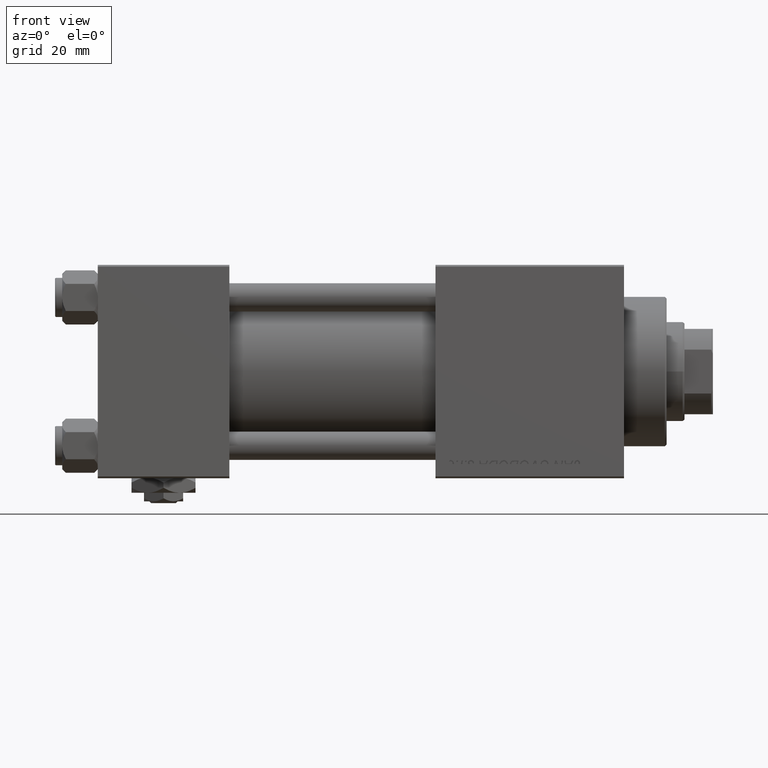
[diagram: clean part render]
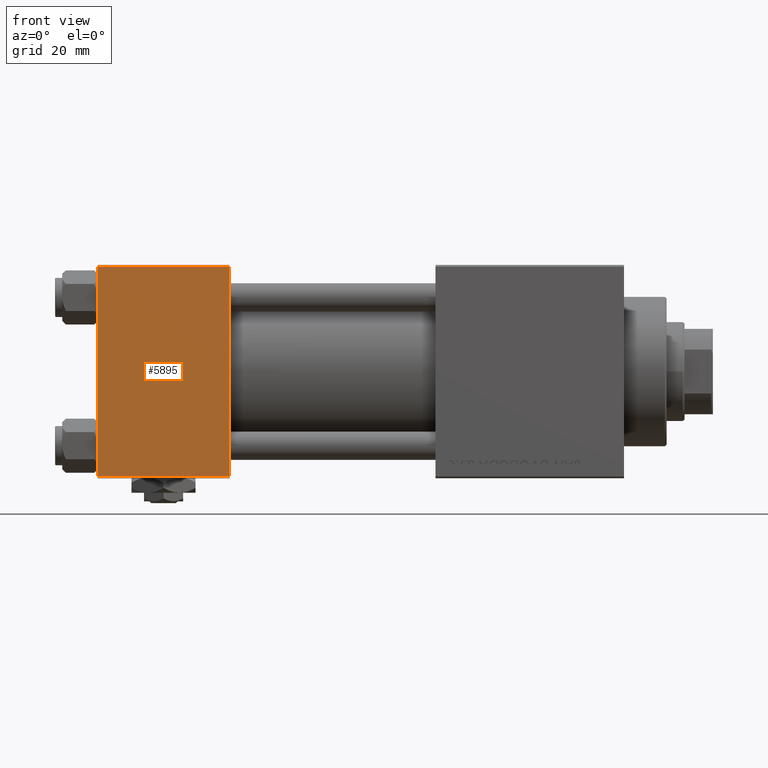
[diagram: same view with one face highlighted and labeled with its STEP entity id]
A machine part, front view. The second image highlights one B-rep face of the part: STEP entity #5895.
In plain terms, the highlighted planar face has unit normal (0, 1, 0).
Its self-contained STEP definition (entity closure, byte-faithful):
#5895 = ADVANCED_FACE ( 'NONE', ( #15008 ), #31010, .F. ) ;
#7142 = CARTESIAN_POINT ( 'NONE',  ( 37.00000000000000000, -30.00000000000000000, -29.50000000000001776 ) ) ;
#7715 = ORIENTED_EDGE ( 'NONE', *, *, #45350, .F. ) ;
#8156 = ORIENTED_EDGE ( 'NONE', *, *, #49526, .T. ) ;
#10649 = CARTESIAN_POINT ( 'NONE',  ( 0.000000000000000000, -30.00000000000000000, 29.49999999999999289 ) ) ;
#11311 = CARTESIAN_POINT ( 'NONE',  ( 37.00000000000000000, -30.00000000000000000, -29.50000000000001776 ) ) ;
#12106 = DIRECTION ( 'NONE',  ( 0.000000000000000000, -0.000000000000000000, 1.000000000000000000 ) ) ;
#12620 = DIRECTION ( 'NONE',  ( -0.000000000000000000, 1.000000000000000000, 0.000000000000000000 ) ) ;
#13862 = VERTEX_POINT ( 'NONE', #10649 ) ;
#14245 = VECTOR ( 'NONE', #33733, 1000.000000000000000 ) ;
#14275 = CARTESIAN_POINT ( 'NONE',  ( 37.00000000000000000, -30.00000000000000000, 29.99999999999999289 ) ) ;
#14662 = EDGE_LOOP ( 'NONE', ( #25747, #32747, #7715, #8156 ) ) ;
#14924 = VECTOR ( 'NONE', #50770, 1000.000000000000000 ) ;
#15008 = FACE_OUTER_BOUND ( 'NONE', #14662, .T. ) ;
#15029 = VECTOR ( 'NONE', #45388, 1000.000000000000000 ) ;
#21147 = CARTESIAN_POINT ( 'NONE',  ( 37.00000000000000000, -30.00000000000000000, 29.49999999999999289 ) ) ;
#23163 = DIRECTION ( 'NONE',  ( 1.000000000000000000, 0.000000000000000000, 0.000000000000000000 ) ) ;
#25747 = ORIENTED_EDGE ( 'NONE', *, *, #27803, .T. ) ;
#27803 = EDGE_CURVE ( 'NONE', #13862, #34870, #33482, .T. ) ;
#28434 = EDGE_CURVE ( 'NONE', #34870, #51793, #51274, .T. ) ;
#29856 = CARTESIAN_POINT ( 'NONE',  ( 0.000000000000000000, -30.00000000000000000, -29.50000000000001776 ) ) ;
#31010 = PLANE ( 'NONE',  #46433 ) ;
#32747 = ORIENTED_EDGE ( 'NONE', *, *, #28434, .T. ) ;
#33482 = LINE ( 'NONE', #49257, #14245 ) ;
#33733 = DIRECTION ( 'NONE',  ( 0.000000000000000000, 0.000000000000000000, -1.000000000000000000 ) ) ;
#33811 = LINE ( 'NONE', #42227, #15029 ) ;
#34242 = VERTEX_POINT ( 'NONE', #21147 ) ;
#34406 = VECTOR ( 'NONE', #23163, 1000.000000000000000 ) ;
#34870 = VERTEX_POINT ( 'NONE', #29856 ) ;
#39172 = CARTESIAN_POINT ( 'NONE',  ( 37.00000000000000000, -30.00000000000000000, 29.99999999999999289 ) ) ;
#42227 = CARTESIAN_POINT ( 'NONE',  ( 37.00000000000000000, -30.00000000000000000, 29.49999999999999289 ) ) ;
#45350 = EDGE_CURVE ( 'NONE', #34242, #51793, #50261, .T. ) ;
#45388 = DIRECTION ( 'NONE',  ( -1.000000000000000000, 0.000000000000000000, 0.000000000000000000 ) ) ;
#46433 = AXIS2_PLACEMENT_3D ( 'NONE', #39172, #12620, #12106 ) ;
#49257 = CARTESIAN_POINT ( 'NONE',  ( 0.000000000000000000, -30.00000000000000000, 29.99999999999999289 ) ) ;
#49526 = EDGE_CURVE ( 'NONE', #34242, #13862, #33811, .T. ) ;
#50261 = LINE ( 'NONE', #14275, #14924 ) ;
#50770 = DIRECTION ( 'NONE',  ( 0.000000000000000000, 0.000000000000000000, -1.000000000000000000 ) ) ;
#51274 = LINE ( 'NONE', #7142, #34406 ) ;
#51793 = VERTEX_POINT ( 'NONE', #11311 ) ;